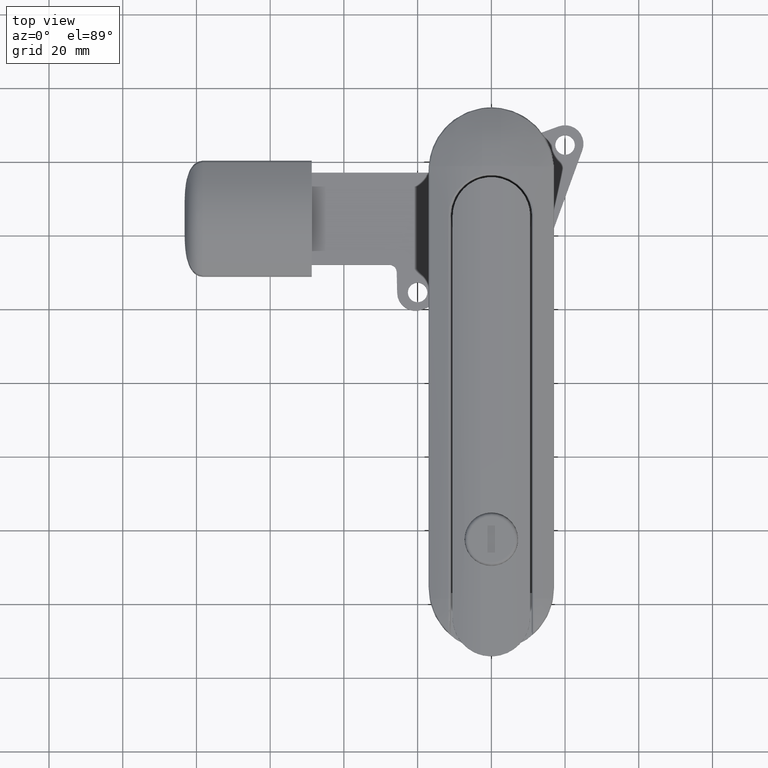
[diagram: clean part render]
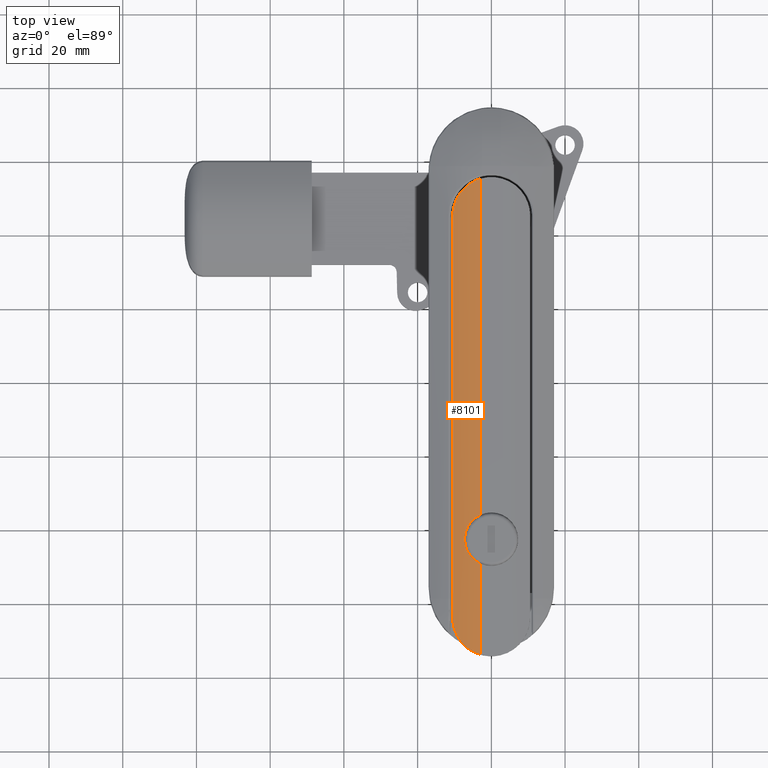
[diagram: same view with one face highlighted and labeled with its STEP entity id]
A machine part, top view. The second image highlights one B-rep face of the part: STEP entity #8101.
In plain terms, the highlighted cylindrical surface (partial cylindrical patch) has radius 30 mm, axis along (0, -1, -0).
Its self-contained STEP definition (entity closure, byte-faithful):
#333=CYLINDRICAL_SURFACE('',#8722,30.);
#480=B_SPLINE_CURVE_WITH_KNOTS('',3,(#12760,#12761,#12762,#12763,#12764,
#12765,#12766,#12767,#12768,#12769),.UNSPECIFIED.,.F.,.F.,(4,2,2,2,4),(3.19367460565189,
3.59294138594442,3.99220816623695,4.39098137400891,4.49509109309932),
 .UNSPECIFIED.);
#487=B_SPLINE_CURVE_WITH_KNOTS('',3,(#12866,#12867,#12868,#12869,#12870,
#12871,#12872,#12873,#12874,#12875,#12876,#12877,#12878,#12879),
 .UNSPECIFIED.,.F.,.F.,(4,2,2,2,2,2,4),(1.3943667335498,1.6456503459104,
1.91991860082768,2.19418685574497,2.46845511066225,2.74272336557953,2.99400697794013),
 .UNSPECIFIED.);
#497=B_SPLINE_CURVE_WITH_KNOTS('',3,(#13278,#13279,#13280,#13281,#13282,
#13283,#13284,#13285,#13286,#13287),.UNSPECIFIED.,.F.,.F.,(4,2,2,2,4),(1.89225811820448,
1.99636783729488,2.39514104506684,2.79440782535937,3.1936746056519),
 .UNSPECIFIED.);
#1214=FACE_OUTER_BOUND('',#1723,.T.);
#1723=EDGE_LOOP('',(#6098,#6099,#6100,#6101,#6102,#6103));
#2227=LINE('',#12900,#2837);
#2263=LINE('',#13275,#2873);
#2314=LINE('',#13429,#2924);
#2837=VECTOR('',#9760,24.712116507527);
#2873=VECTOR('',#9902,109.);
#2924=VECTOR('',#10051,91.212116507527);
#3483=VERTEX_POINT('',#12756);
#3485=VERTEX_POINT('',#12759);
#3504=VERTEX_POINT('',#12863);
#3505=VERTEX_POINT('',#12865);
#3508=VERTEX_POINT('',#12899);
#3562=VERTEX_POINT('',#13273);
#4344=EDGE_CURVE('',#3483,#3485,#480,.T.);
#4364=EDGE_CURVE('',#3505,#3504,#487,.T.);
#4370=EDGE_CURVE('',#3505,#3508,#2227,.T.);
#4449=EDGE_CURVE('',#3483,#3562,#2263,.T.);
#4451=EDGE_CURVE('',#3508,#3562,#497,.T.);
#4516=EDGE_CURVE('',#3485,#3504,#2314,.T.);
#6098=ORIENTED_EDGE('',*,*,#4364,.T.);
#6099=ORIENTED_EDGE('',*,*,#4516,.F.);
#6100=ORIENTED_EDGE('',*,*,#4344,.F.);
#6101=ORIENTED_EDGE('',*,*,#4449,.T.);
#6102=ORIENTED_EDGE('',*,*,#4451,.F.);
#6103=ORIENTED_EDGE('',*,*,#4370,.F.);
#8101=ADVANCED_FACE('',(#1214),#333,.T.);
#8722=AXIS2_PLACEMENT_3D('',#13428,#10049,#10050);
#9760=DIRECTION('',(0.,-1.,0.));
#9902=DIRECTION('',(2.24081711392234E-16,-1.,0.));
#10049=DIRECTION('center_axis',(0.,-1.,0.));
#10050=DIRECTION('ref_axis',(-0.344235757236286,0.,0.938883242709103));
#10051=DIRECTION('',(0.,-1.,0.));
#12756=CARTESIAN_POINT('',(-10.5,54.5,0.));
#12759=CARTESIAN_POINT('',(-3.,64.562305898749,1.7));
#12760=CARTESIAN_POINT('Ctrl Pts',(-10.5,54.5,-1.62890534394222E-14));
#12761=CARTESIAN_POINT('Ctrl Pts',(-10.5,55.8308892676418,-1.62151742440141E-14));
#12762=CARTESIAN_POINT('Ctrl Pts',(-10.2317356977832,57.2421740486732,0.102598144314305));
#12763=CARTESIAN_POINT('Ctrl Pts',(-9.15655456464522,59.8259236639156,0.462435754070088));
#12764=CARTESIAN_POINT('Ctrl Pts',(-8.35013845256587,60.9994731296574,0.713354598386583));
#12765=CARTESIAN_POINT('Ctrl Pts',(-6.49728979612617,62.8515832982641,1.17481848550812));
#12766=CARTESIAN_POINT('Ctrl Pts',(-5.32382743973433,63.6577442590279,1.41669204434887));
#12767=CARTESIAN_POINT('Ctrl Pts',(-3.69475248443081,64.3352540629782,1.62800566322716));
#12768=CARTESIAN_POINT('Ctrl Pts',(-3.34968391210431,64.4580502990019,1.6668999736325));
#12769=CARTESIAN_POINT('Ctrl Pts',(-3.,64.562305898749,1.69999999999999));
#12863=CARTESIAN_POINT('',(-2.99999999999998,-26.6498106087779,1.7));
#12865=CARTESIAN_POINT('',(-2.99999999999998,-39.8501893912221,1.7));
#12866=CARTESIAN_POINT('Ctrl Pts',(-2.99999999999998,-39.8501893912221,
1.7));
#12867=CARTESIAN_POINT('Ctrl Pts',(-3.80598939326091,-39.4838410887024,
1.62370747053155));
#12868=CARTESIAN_POINT('Ctrl Pts',(-4.53757907364532,-38.965310466624,1.52029360671202));
#12869=CARTESIAN_POINT('Ctrl Pts',(-5.76789289975606,-37.7353285433264,
1.31434654266589));
#12870=CARTESIAN_POINT('Ctrl Pts',(-6.32541957011611,-36.9223014314558,
1.19829412566462));
#12871=CARTESIAN_POINT('Ctrl Pts',(-7.06656182995318,-35.1369102195075,
1.03319350556237));
#12872=CARTESIAN_POINT('Ctrl Pts',(-7.25000000000005,-34.1642275163909,
0.986805134697542));
#12873=CARTESIAN_POINT('Ctrl Pts',(-7.25000000000005,-32.3357724836091,
0.986805134697542));
#12874=CARTESIAN_POINT('Ctrl Pts',(-7.06656182995318,-31.3630897804925,
1.03319350556236));
#12875=CARTESIAN_POINT('Ctrl Pts',(-6.32541957011611,-29.5776985685442,
1.19829412566461));
#12876=CARTESIAN_POINT('Ctrl Pts',(-5.76789289975606,-28.7646714566736,
1.31434654266589));
#12877=CARTESIAN_POINT('Ctrl Pts',(-4.53757907364532,-27.534689533376,1.52029360671202));
#12878=CARTESIAN_POINT('Ctrl Pts',(-3.80598939326091,-27.0161589112976,
1.62370747053155));
#12879=CARTESIAN_POINT('Ctrl Pts',(-2.99999999999998,-26.6498106087779,
1.7));
#12899=CARTESIAN_POINT('',(-3.,-64.562305898749,1.7));
#12900=CARTESIAN_POINT('',(-3.,65.,1.7));
#13273=CARTESIAN_POINT('',(-10.5,-54.5,0.));
#13275=CARTESIAN_POINT('',(-10.5,54.5,0.));
#13278=CARTESIAN_POINT('Ctrl Pts',(-3.,-64.562305898749,1.69999999999999));
#13279=CARTESIAN_POINT('Ctrl Pts',(-3.3496839121043,-64.4580502990019,1.6668999736325));
#13280=CARTESIAN_POINT('Ctrl Pts',(-3.69475248443079,-64.3352540629781,
1.62800566322716));
#13281=CARTESIAN_POINT('Ctrl Pts',(-5.32382743973429,-63.6577442590279,
1.41669204434887));
#13282=CARTESIAN_POINT('Ctrl Pts',(-6.49728979612614,-62.8515832982641,
1.17481848550813));
#13283=CARTESIAN_POINT('Ctrl Pts',(-8.35013845256584,-60.9994731296574,
0.713354598386593));
#13284=CARTESIAN_POINT('Ctrl Pts',(-9.15655456464518,-59.8259236639156,
0.462435754070103));
#13285=CARTESIAN_POINT('Ctrl Pts',(-10.2317356977831,-57.2421740486732,
0.102598144314321));
#13286=CARTESIAN_POINT('Ctrl Pts',(-10.5,-55.8308892676418,-6.36755772092714E-15));
#13287=CARTESIAN_POINT('Ctrl Pts',(-10.5,-54.5,-6.34908792207511E-15));
#13428=CARTESIAN_POINT('Origin',(-0.172927282911425,65.,-28.1664972812731));
#13429=CARTESIAN_POINT('',(-3.,65.,1.7));